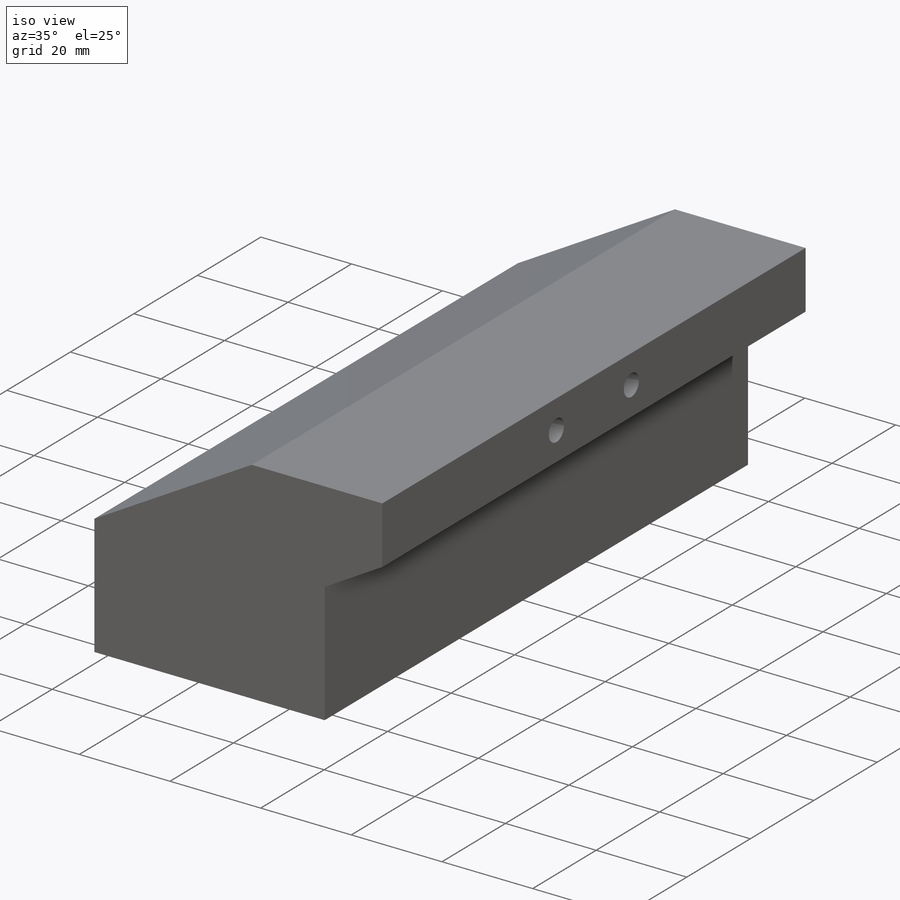
[diagram: iso view]
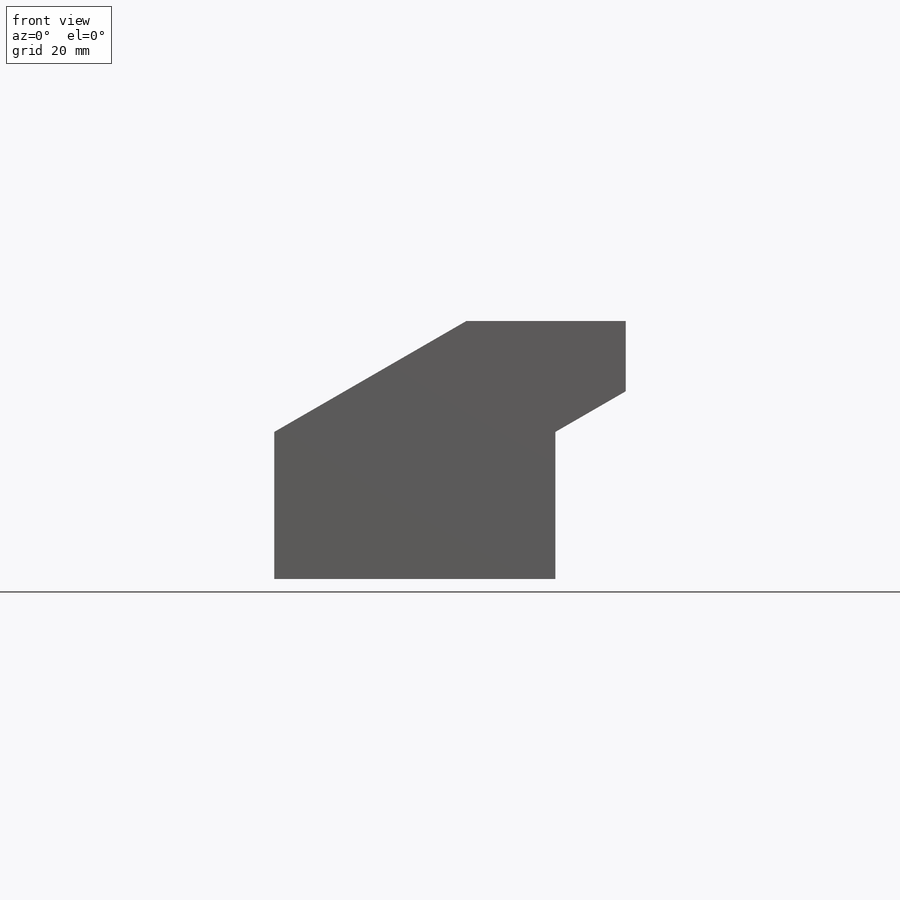
[diagram: front view]
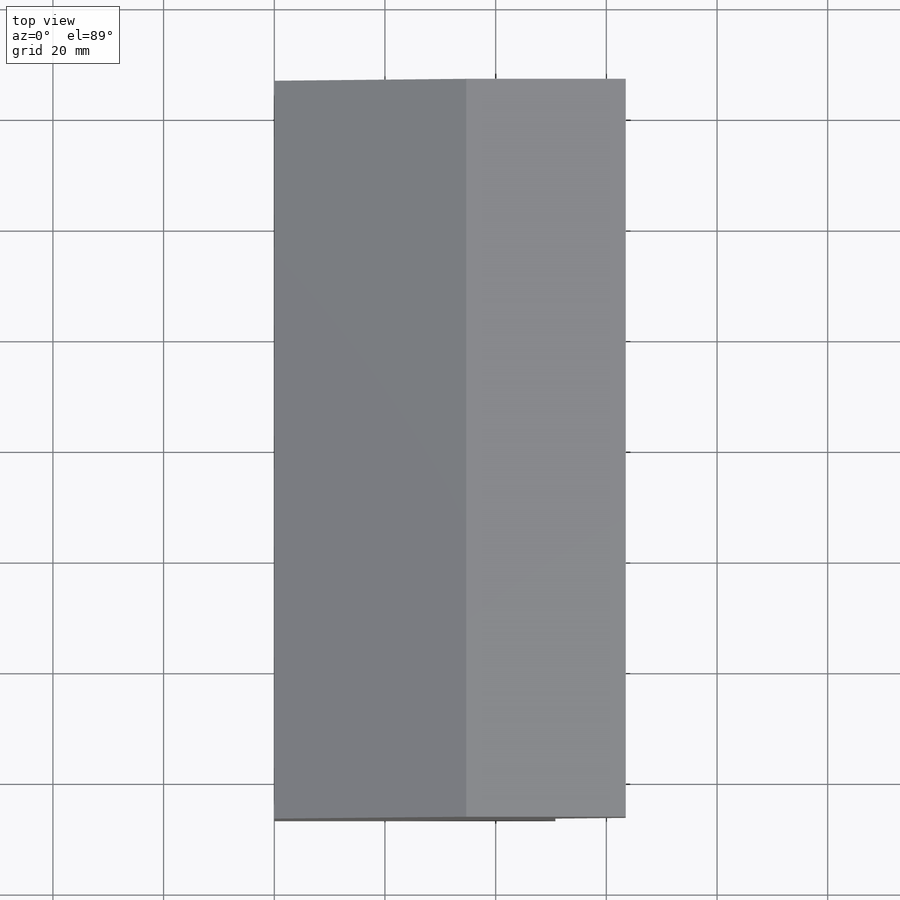
[diagram: top view]
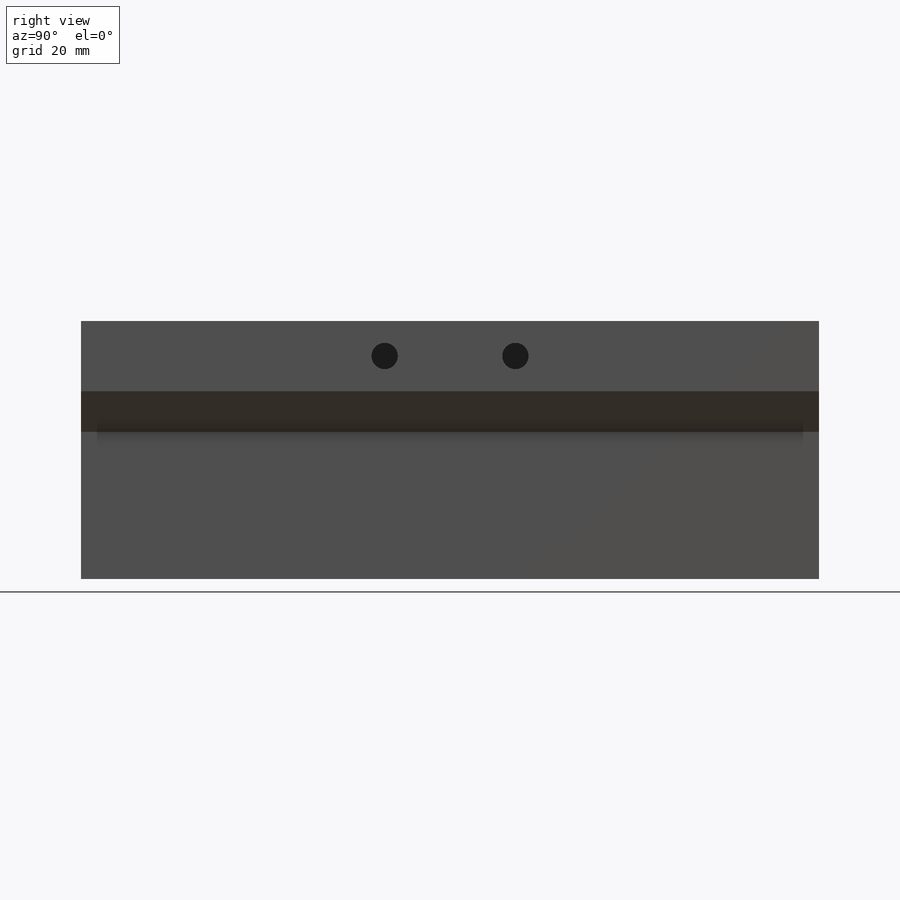
[diagram: right view]
SOLIDWORKS PART (.sldprt)
format: sldprt  version: not decoded by parser v0  size: 244,224 bytes
history: native  units: mm
features: sketch x2, material x1, extrude x1, shell x1, cut_extrude x1 (+16 scaffold rows collapsed)
feature tree (22):
  scaffold x16  (default folders/planes/origin — collapsed)
  material  "Material <not specified>"
  sketch  "Sketch1"  dims[c1.D1=~34.147946mm c2.D1=30.0deg c2.D2=40.259mm c2.D3=12.7mm c2.D4=50.8mm c2.D5=12.7mm]
  extrude  "Boss-Extrude1"  Depth=133.35mm
  shell  "Shell1"  Thickness=3.175mm
  sketch  "Sketch3"  dims[D3=4.7625mm D1=23.622mm D2=11.811mm]
  cut_extrude  "Cut-Extrude1"  Depth=9.525mm
decode coverage: 5 of 5 modeling features carry decoded parameters
note: ~ marks probable driven/reference dimensions
note: suppression state not decoded; provenance and decode notes live in map.json
